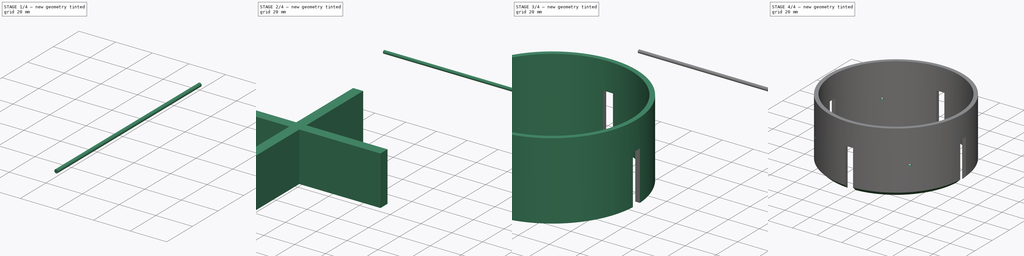
[diagram: build sequence overview — one tinted view per stage of 4, left to right]
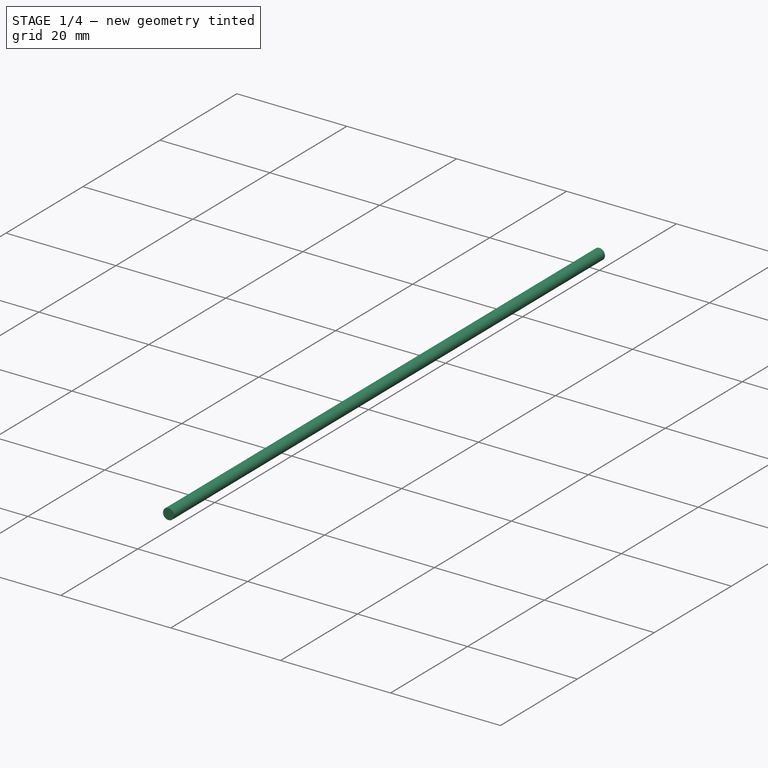
[diagram: stage 1 of 4 — iso view after this stage's code; geometry added in this stage tinted green]
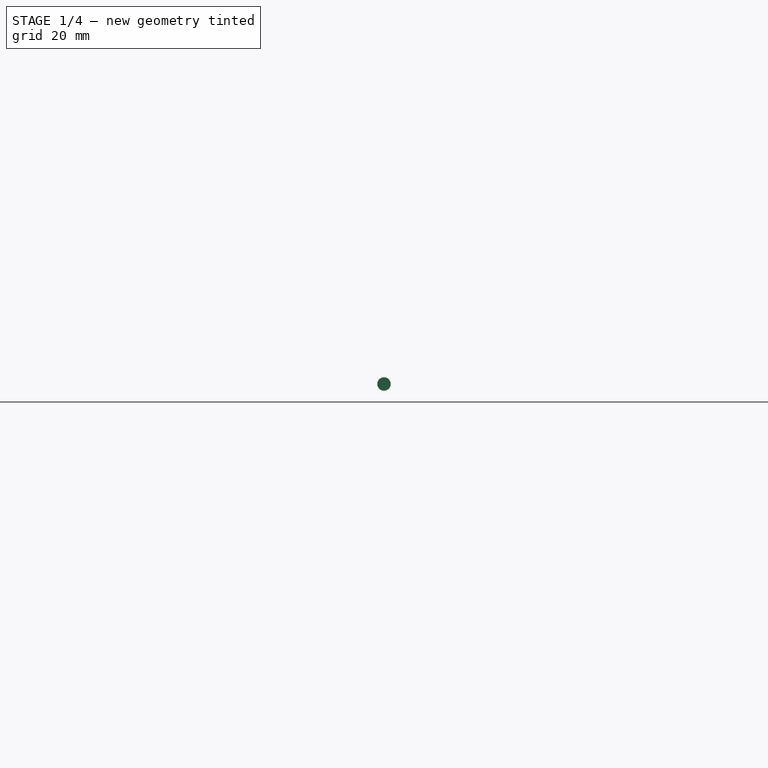
[diagram: stage 1 of 4 — front view after this stage's code; geometry added in this stage tinted green]
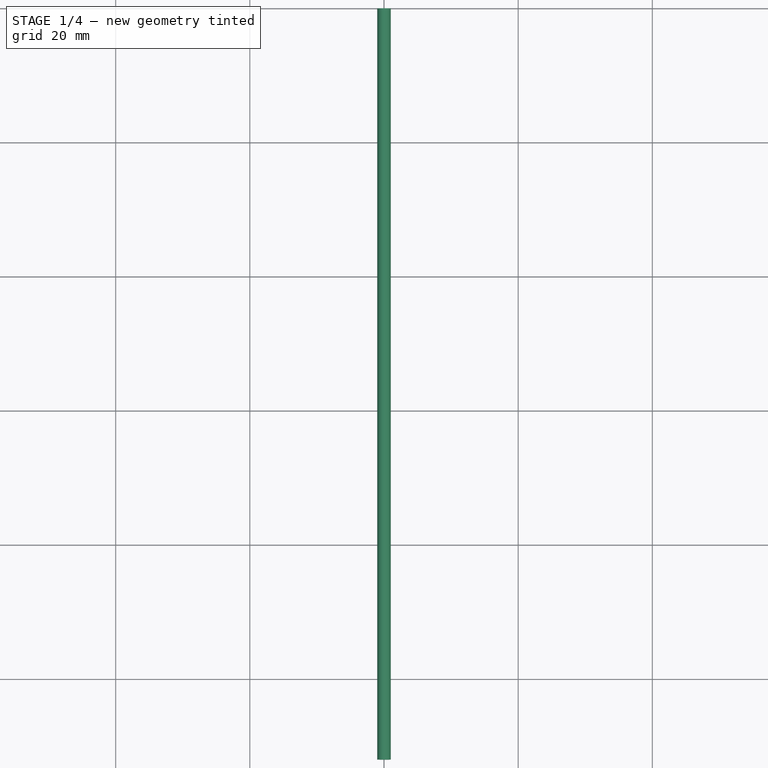
[diagram: stage 1 of 4 — top view after this stage's code; geometry added in this stage tinted green]
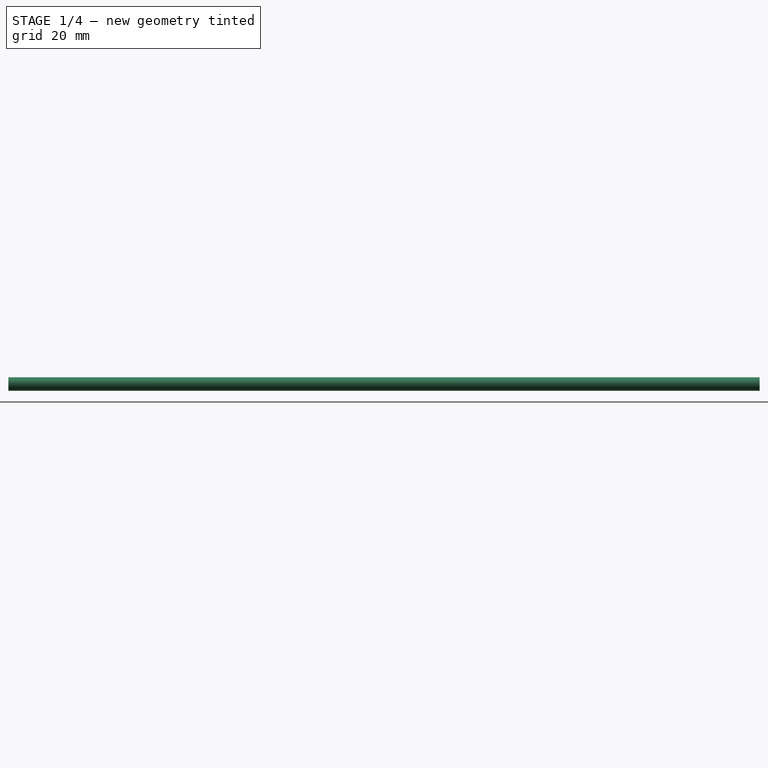
[diagram: stage 1 of 4 — right view after this stage's code; geometry added in this stage tinted green]
FCSTD DOCUMENT  (FreeCAD 1.0R39109 (Git))
Label: DragSkirt
License: Creative Commons Attribution-ShareAlike 4.0
LicenseURL: https://creativecommons.org/licenses/by-sa/4.0/
objects: Sketcher::SketchObject×5, PartDesign::Body×5, PartDesign::Pad×4, PartDesign::Boolean×3, PartDesign::Pocket×1, App::VarSet×1, PartDesign::Chamfer×1
note: 39 computed .brp shape members not serialized (recipe doc carries the construction recipe); baked Part::Feature solids carry a one-line shape summary decoded from their .brp

FEATURE [Sketcher::SketchObject] Sketch003
  ArcFitTolerance = 1e-06
  AttachmentSupport = -> [XZ_Plane003]
  FullyConstrained = false
  MakeInternals = false
  MapMode = 5
  Placement = pos=(0,0,0) rot=(1,0,0;1.5708rad)
  expr: Constraints[0] = VarSet.TubeDiameter
  sketch-geometry (1):
    g0: Circle CenterX=0 CenterY=90.5006 CenterZ=0 NormalX=0 NormalY=0 NormalZ=1 AngleXU=0 Radius=1
  constraints (2):
    c: Diameter(g0) = 2
    c: PointOnObject(g0,g-2)
FEATURE [PartDesign::Pad] Pad002
  Direction = (0,-1,2e-16)
  Length = 112
  Length2 = 10
  Placement = pos=(0,0,0) rot=(1,0,0;1.5708rad)
  Profile = -> Sketch003
  ReferenceAxis = -> Sketch003 [N_Axis]
  Refine = true
  Suppressed = false
  Type = 0
  expr: Length = VarSet.SkirtCutDiameter
FEATURE [PartDesign::Body] Body003  label="TubeBody001"
  AllowCompound = false
  Group = -> [Sketch003,Pad002]
  Origin = -> Origin003
  Placement = pos=(0,56,0) rot=(0,0,1;0rad)
  Tip = -> Pad002
  expr: .Placement.Base.y = VarSet.SkirtCutDiameter / 2
FEATURE [Sketcher::SketchObject] Sketch004
  ArcFitTolerance = 1e-06
  AttachmentSupport = -> [XZ_Plane004]
  FullyConstrained = false
  MakeInternals = false
  MapMode = 5
  Placement = pos=(0,0,0) rot=(1,0,0;1.5708rad)
  expr: Constraints[0] = VarSet.TubeDiameter
  sketch-geometry (1):
    g0: Circle CenterX=0 CenterY=90.5006 CenterZ=0 NormalX=0 NormalY=0 NormalZ=1 AngleXU=0 Radius=1
  constraints (2):
    c: Diameter(g0) = 2
    c: PointOnObject(g0,g-2)
FEATURE [PartDesign::Pad] Pad003
  Direction = (0,-1,2e-16)
  Length = 112
  Length2 = 10
  Placement = pos=(0,0,0) rot=(1,0,0;1.5708rad)
  Profile = -> Sketch004
  ReferenceAxis = -> Sketch004 [N_Axis]
  Refine = true
  Suppressed = false
  Type = 0
  expr: Length = VarSet.SkirtCutDiameter
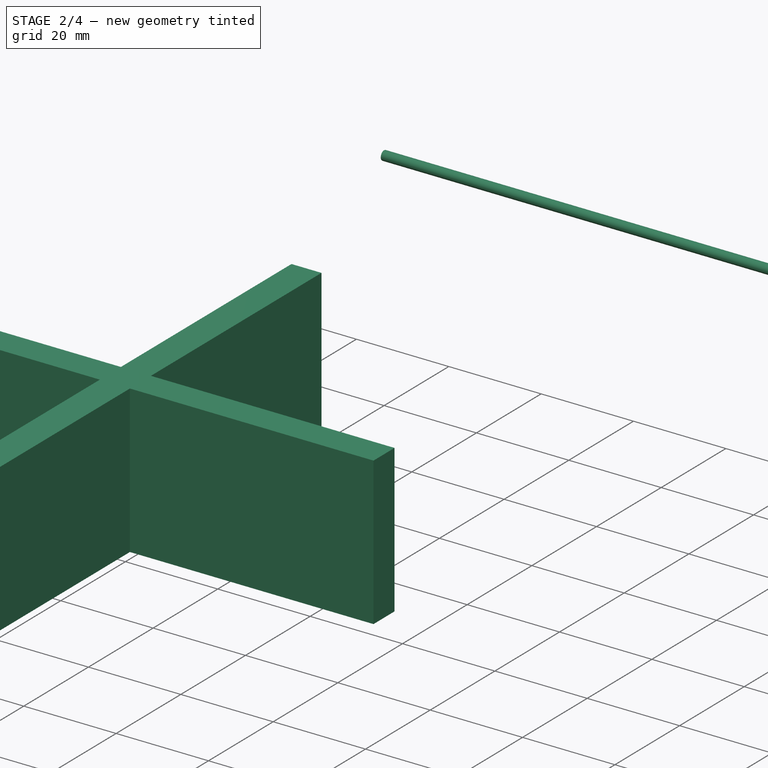
[diagram: stage 2 of 4 — iso view after this stage's code; geometry added in this stage tinted green]
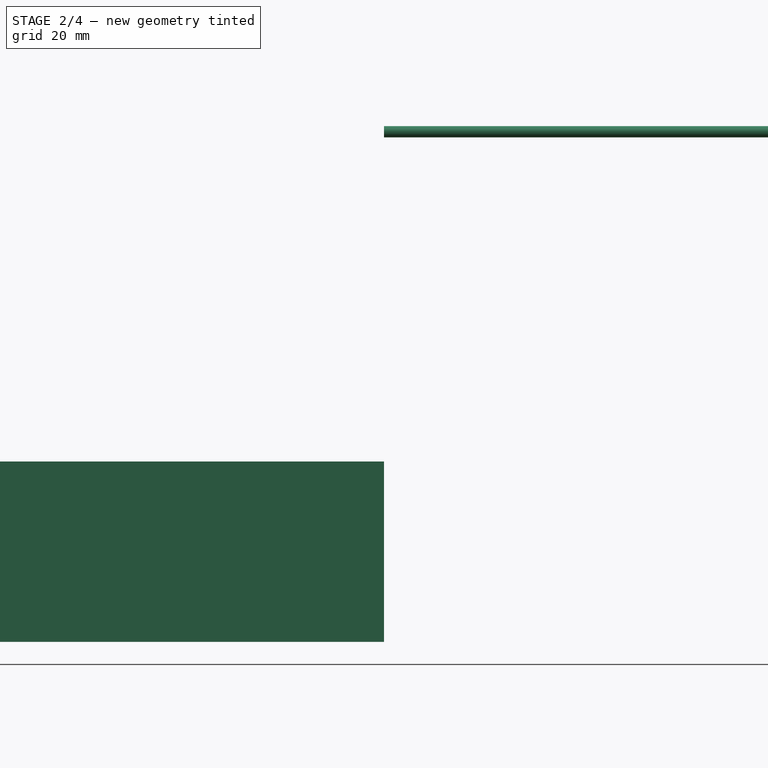
[diagram: stage 2 of 4 — front view after this stage's code; geometry added in this stage tinted green]
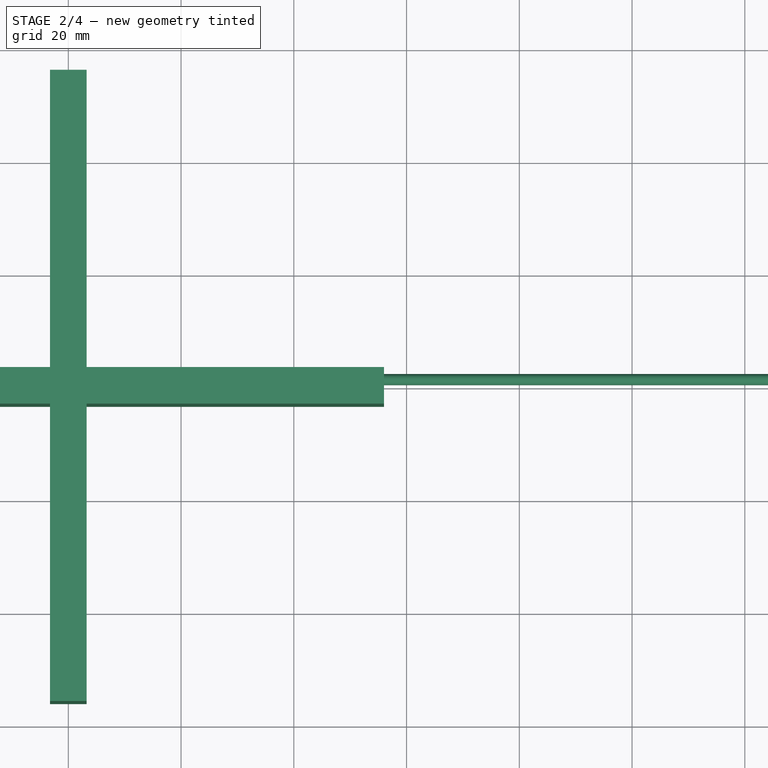
[diagram: stage 2 of 4 — top view after this stage's code; geometry added in this stage tinted green]
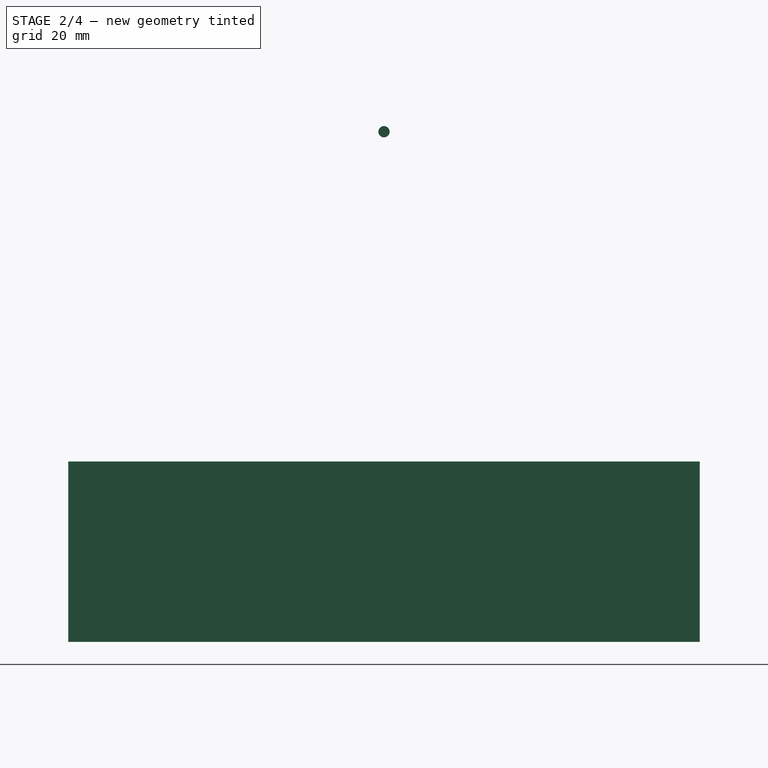
[diagram: stage 2 of 4 — right view after this stage's code; geometry added in this stage tinted green]
FEATURE [Sketcher::SketchObject] Sketch002
  ArcFitTolerance = 1e-06
  AttachmentSupport = -> [XY_Plane001]
  FullyConstrained = true
  MakeInternals = false
  MapMode = 5
  sketch-geometry (8):
    g0: LineSegment StartX=-3.25 StartY=56 StartZ=0 EndX=-3.25 EndY=-56 EndZ=0
    g1: LineSegment StartX=-3.25 StartY=-56 StartZ=0 EndX=3.25 EndY=-56 EndZ=0
    g2: LineSegment StartX=3.25 StartY=-56 StartZ=0 EndX=3.25 EndY=56 EndZ=0
    g3: LineSegment StartX=3.25 StartY=56 StartZ=0 EndX=-3.25 EndY=56 EndZ=0
    g4: LineSegment StartX=-56 StartY=3.25 StartZ=0 EndX=-56 EndY=-3.25 EndZ=0
    g5: LineSegment StartX=-56 StartY=-3.25 StartZ=0 EndX=56 EndY=-3.25 EndZ=0
    g6: LineSegment StartX=56 StartY=-3.25 StartZ=0 EndX=56 EndY=3.25 EndZ=0
    g7: LineSegment StartX=56 StartY=3.25 StartZ=0 EndX=-56 EndY=3.25 EndZ=0
  constraints (22):
    c: Coincident(g0,g1)
    c: Coincident(g1,g2)
    c: Coincident(g2,g3)
    c: Coincident(g3,g0)
    c: Vertical(g0)
    c: Vertical(g2)
    c: Horizontal(g1)
    c: Horizontal(g3)
    c: Coincident(g4,g5)
    c: Coincident(g5,g6)
    c: Coincident(g6,g7)
    c: Coincident(g7,g4)
    c: Vertical(g4)
    c: Vertical(g6)
    c: Horizontal(g5)
    c: Horizontal(g7)
    c: DistanceX(g0,g2) = 6.5
    c: DistanceY(g1,g2) = 112
    c: Distance(g4,g4) = 6.5
    c: DistanceX(g4,g5) = 112
    c: Symmetric(g4,g6,g-1)
    c: Symmetric(g0,g1,g-1)
FEATURE [PartDesign::Pad] Pad001
  Direction = (0,0,1)
  Length = 32
  Length2 = 10
  Profile = -> Sketch002
  ReferenceAxis = -> Sketch002 [N_Axis]
  Refine = true
  Suppressed = false
  Type = 0
  expr: Length = VarSet.SkirtHeight - VarSet.AftRingHeight
FEATURE [PartDesign::Body] Body004  label="TubeBody002"
  AllowCompound = false
  Group = -> [Sketch004,Pad003]
  Origin = -> Origin004
  Placement = pos=(56,0,0) rot=(0,0,1;1.5708rad)
  Tip = -> Pad003
  expr: .Placement.Base.x = VarSet.SkirtCutDiameter / 2
FEATURE [PartDesign::Boolean] Boolean001  label="ScrewHoleBody"
  Group = -> [Body003,Body004]
  Refine = true
  Suppressed = false
  Type = 0
  UsePlacement = true
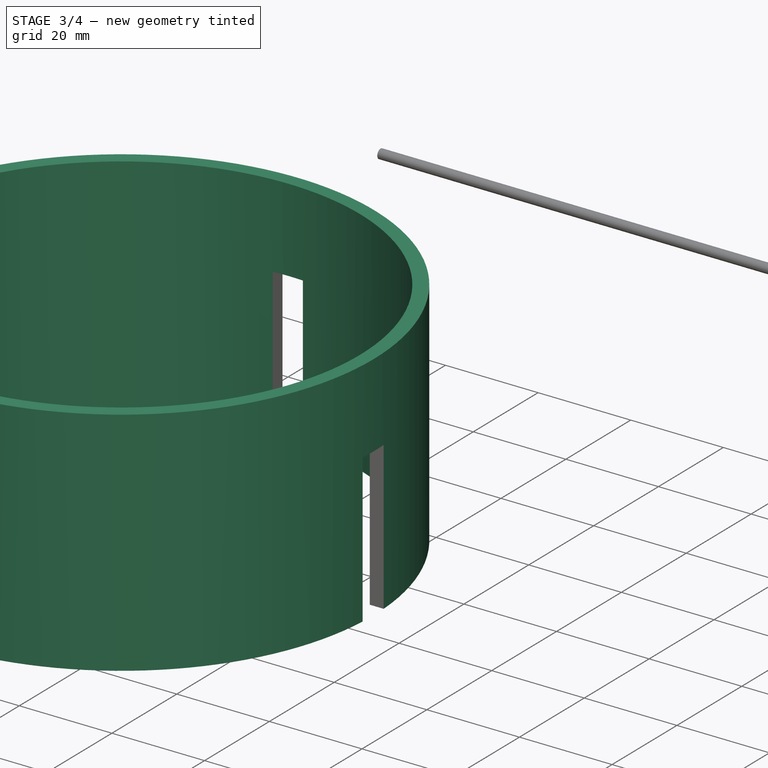
[diagram: stage 3 of 4 — iso view after this stage's code; geometry added in this stage tinted green]
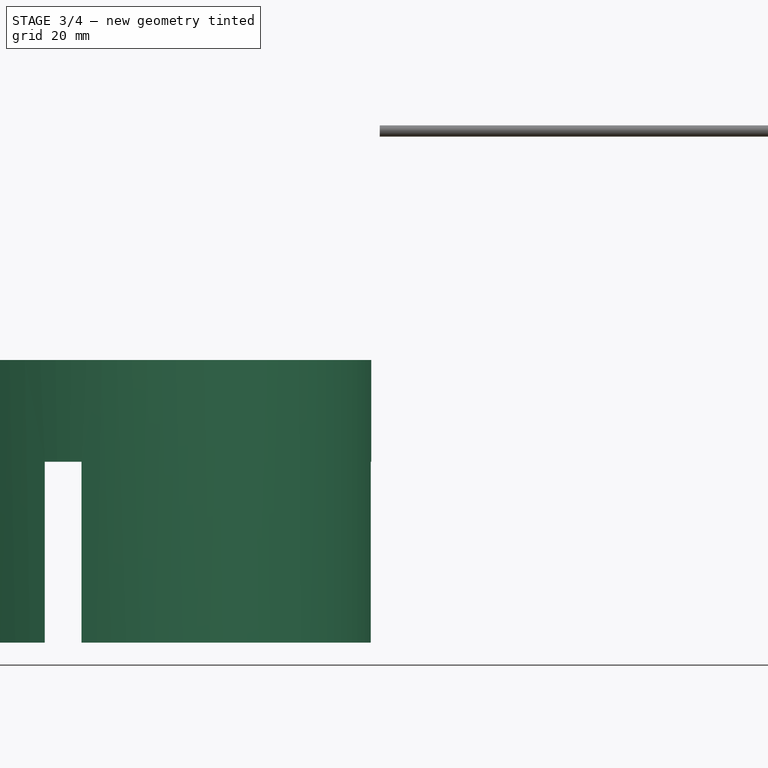
[diagram: stage 3 of 4 — front view after this stage's code; geometry added in this stage tinted green]
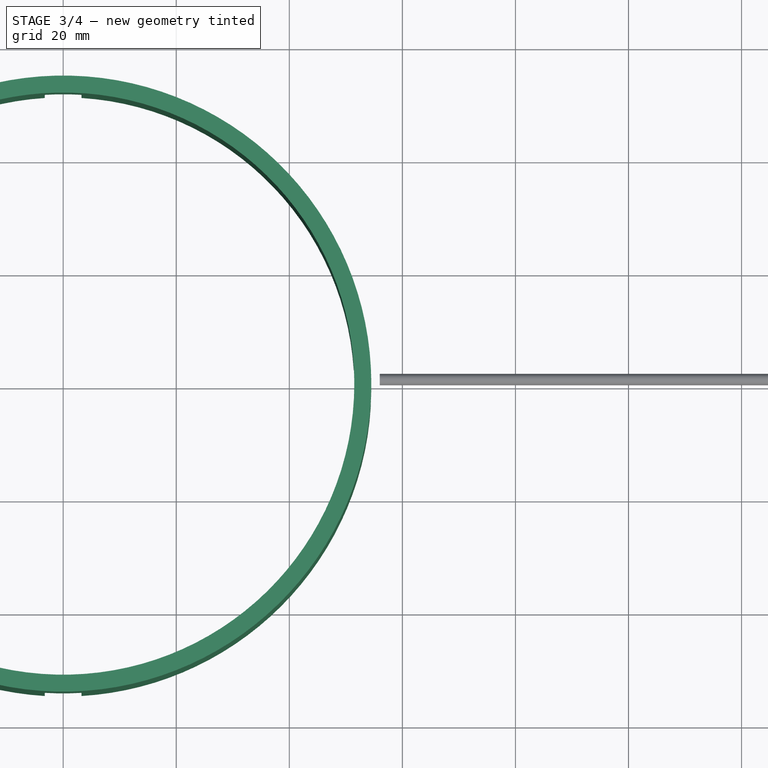
[diagram: stage 3 of 4 — top view after this stage's code; geometry added in this stage tinted green]
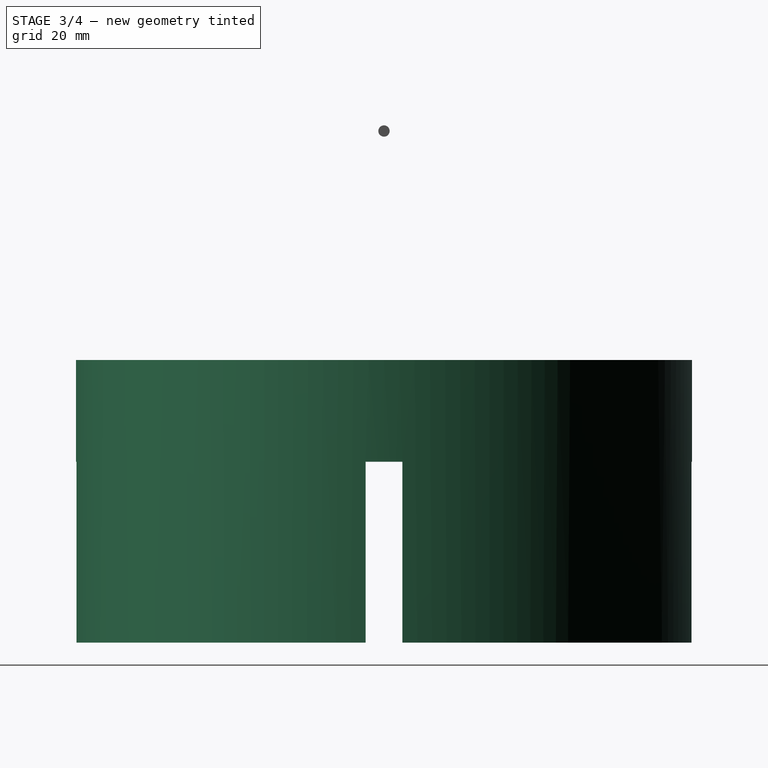
[diagram: stage 3 of 4 — right view after this stage's code; geometry added in this stage tinted green]
FEATURE [Sketcher::SketchObject] Sketch
  ArcFitTolerance = 1e-06
  AttachmentSupport = -> [XY_Plane]
  FullyConstrained = true
  MakeInternals = false
  MapMode = 5
  sketch-geometry (1):
    g0: Circle CenterX=0 CenterY=0 CenterZ=0 NormalX=0 NormalY=0 NormalZ=1 AngleXU=0 Radius=54.5
  constraints (2):
    c: Coincident(g0,g-1)
    c: Diameter(g0) = 109
FEATURE [PartDesign::Pad] Pad
  Direction = (0,0,1)
  Length = 50
  Length2 = 10
  Profile = -> Sketch
  ReferenceAxis = -> Sketch [N_Axis]
  Refine = true
  Suppressed = false
  Type = 0
  expr: Length = VarSet.SkirtHeight
FEATURE [Sketcher::SketchObject] Sketch001
  ArcFitTolerance = 1e-06
  AttachmentSupport = -> [Pad]
  FullyConstrained = true
  MakeInternals = false
  MapMode = 5
  Placement = pos=(0,0,50) rot=(0,0,1;0rad)
  sketch-geometry (1):
    g0: Circle CenterX=0 CenterY=0 CenterZ=0 NormalX=0 NormalY=0 NormalZ=1 AngleXU=0 Radius=51.5
  constraints (2):
    c: Diameter(g0) = 103
    c: Coincident(g0,g-1)
FEATURE [PartDesign::Pocket] Pocket  label="Cylinder"
  BaseFeature = -> Pad
  Direction = (0,0,-1)
  Length = 5
  Length2 = 5
  Profile = -> Sketch001 [Edge1]
  ReferenceAxis = -> Sketch001 [N_Axis]
  Refine = true
  Suppressed = false
  Type = 1
FEATURE [PartDesign::Body] Body001  label="SlotBody"
  AllowCompound = false
  Group = -> [Sketch002,Pad001]
  Origin = -> Origin001
  Tip = -> Pad001
FEATURE [PartDesign::Boolean] Boolean
  BaseFeature = -> Pocket
  Group = -> [Body001]
  Refine = true
  Suppressed = false
  Type = 1
  UsePlacement = true
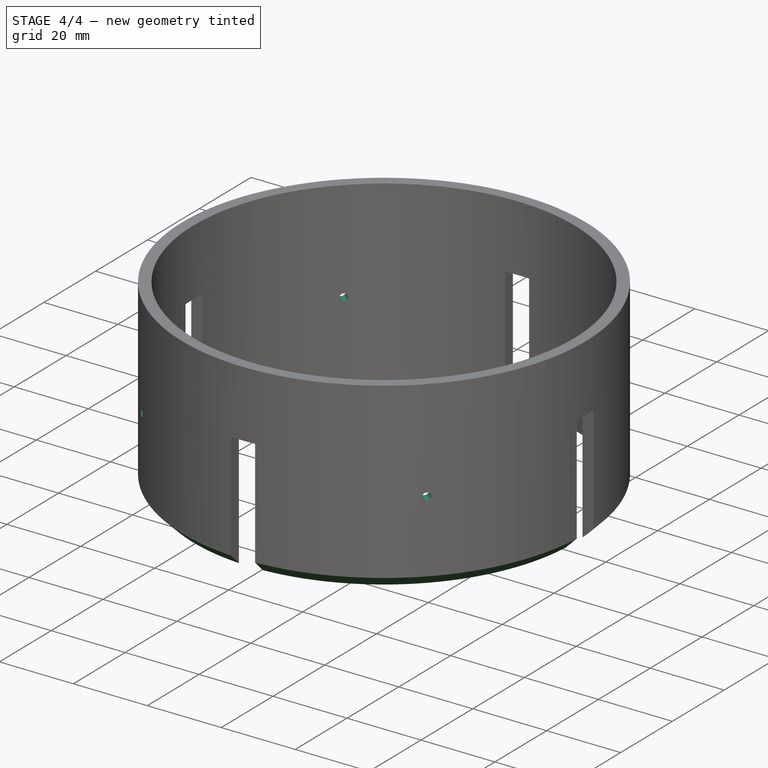
[diagram: stage 4 of 4 — iso view after this stage's code; geometry added in this stage tinted green]
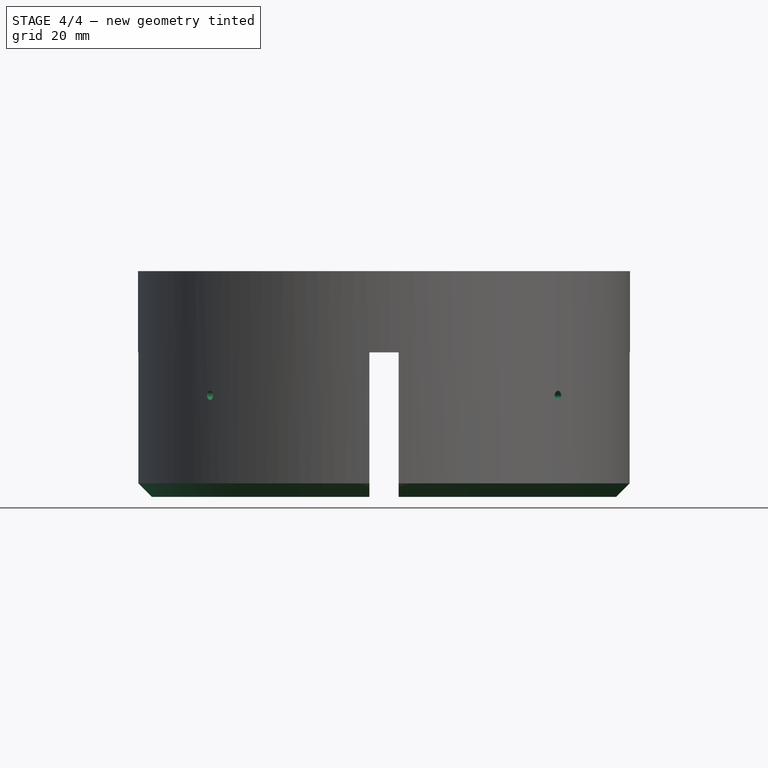
[diagram: stage 4 of 4 — front view after this stage's code; geometry added in this stage tinted green]
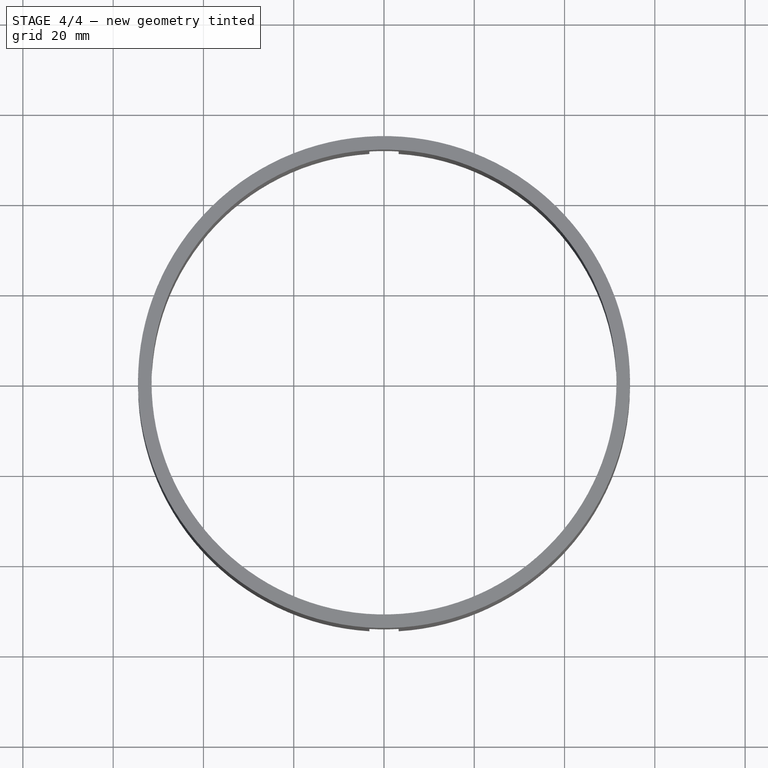
[diagram: stage 4 of 4 — top view after this stage's code; geometry added in this stage tinted green]
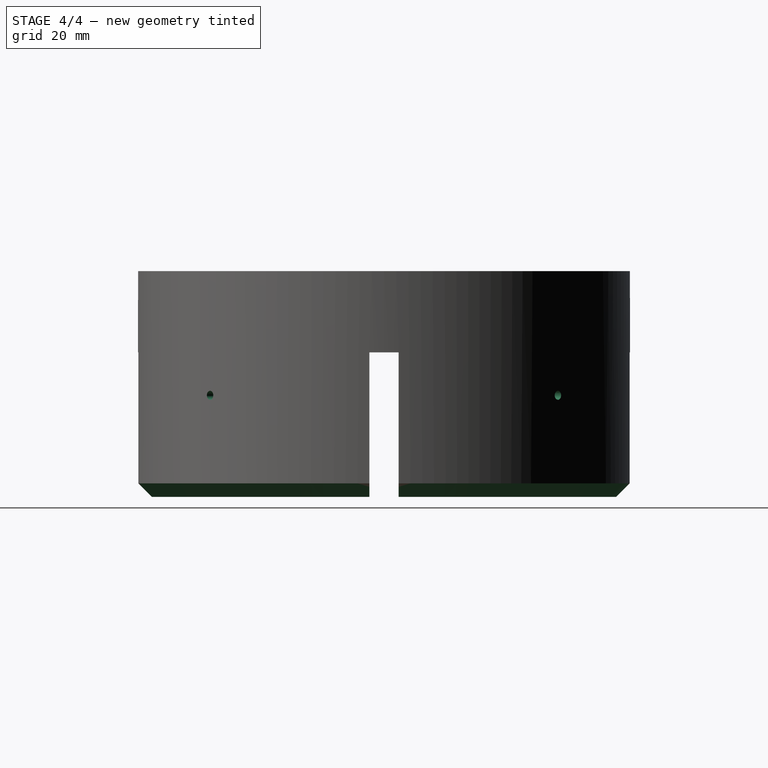
[diagram: stage 4 of 4 — right view after this stage's code; geometry added in this stage tinted green]
FEATURE [PartDesign::Body] Body002  label="Body"
  AllowCompound = false
  Group = -> [Boolean001]
  Origin = -> Origin002
  Placement = pos=(0,0,-68) rot=(0,0,1;0.785398rad)
  Tip = -> Boolean001
  expr: .Placement.Base.z = -VarSet.SkirtHeight - VarSet.AftRingHeight
FEATURE [PartDesign::Boolean] Boolean002
  BaseFeature = -> Boolean
  Group = -> [Body002]
  Refine = true
  Suppressed = false
  Type = 1
  UsePlacement = true
FEATURE [App::VarSet] VarSet
  AftRingHeight = 18
  SkirtCutDiameter = 112
  SkirtHeight = 50
  SkirtID = 98.5
  SkirtThickness = 3
  TubeDiameter = 2
FEATURE [PartDesign::Chamfer] Chamfer
  Angle = 45
  Base = -> Boolean002 [Edge14,Edge2,Edge6,Edge10]
  BaseFeature = -> Boolean002
  ChamferType = 0
  FlipDirection = false
  Refine = true
  Size = 2.99
  Size2 = 1
  SupportTransform = false
  Suppressed = false
  UseAllEdges = false
FEATURE [PartDesign::Body] Body  label="CylinderBody"
  AllowCompound = false
  Group = -> [Sketch,Pad,Sketch001,Pocket,Boolean,Boolean002,Chamfer]
  Origin = -> Origin
  Tip = -> Chamfer
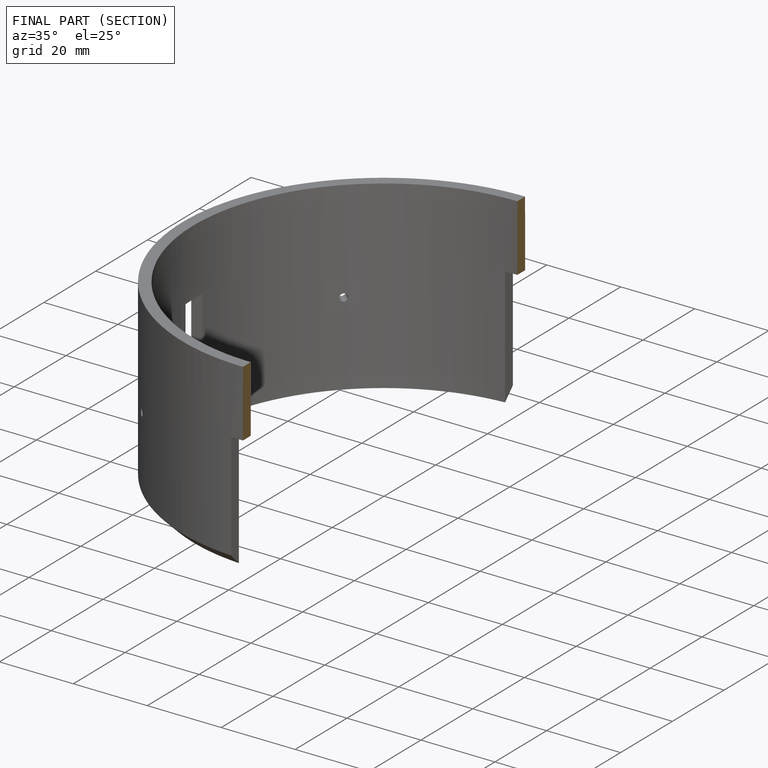
[diagram: finished part — half-section view (interior)]
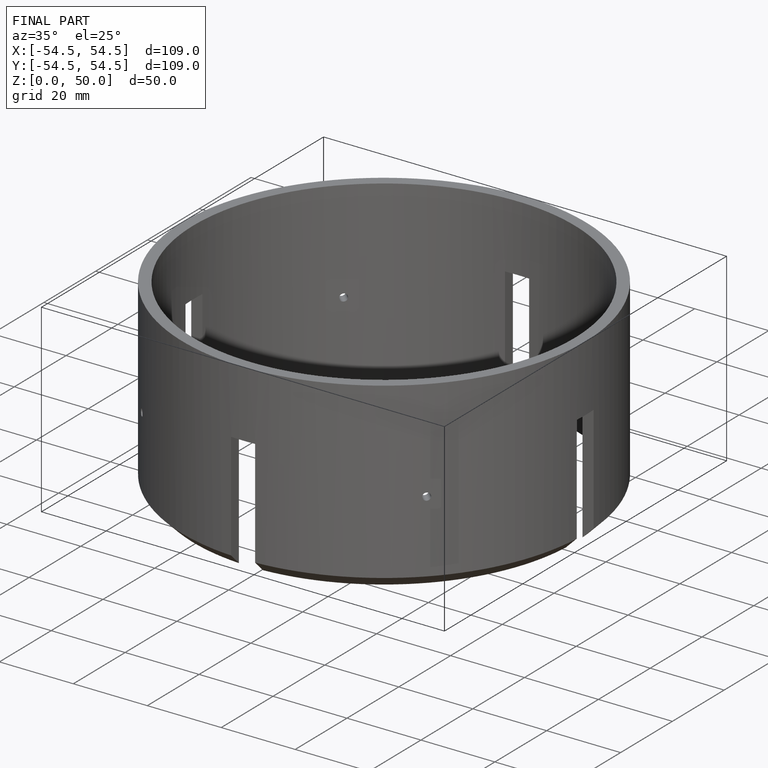
[diagram: finished part — iso view with bounding-box wireframe]
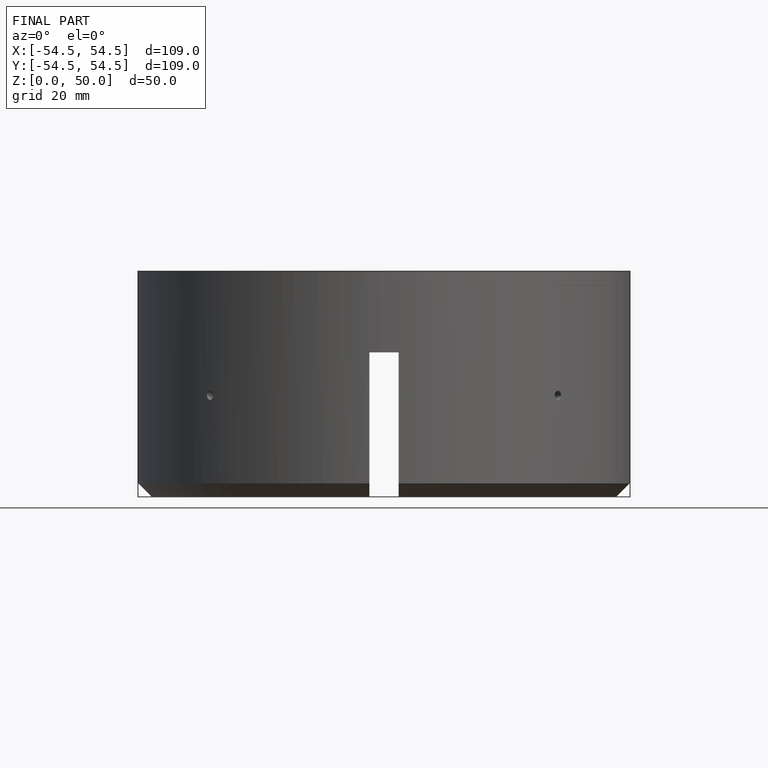
[diagram: finished part — front view with bounding-box wireframe]
